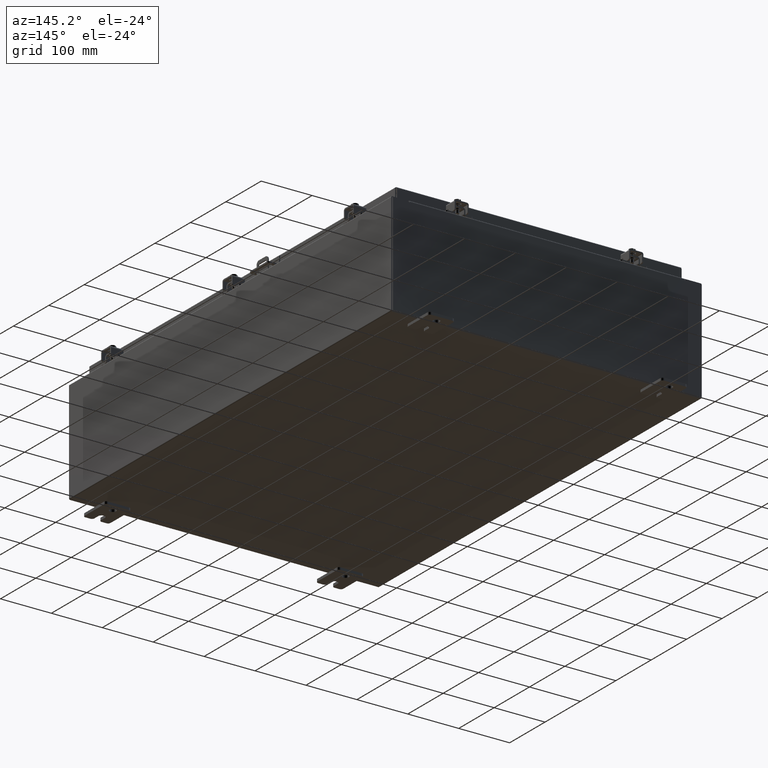
[diagram: clean part render]
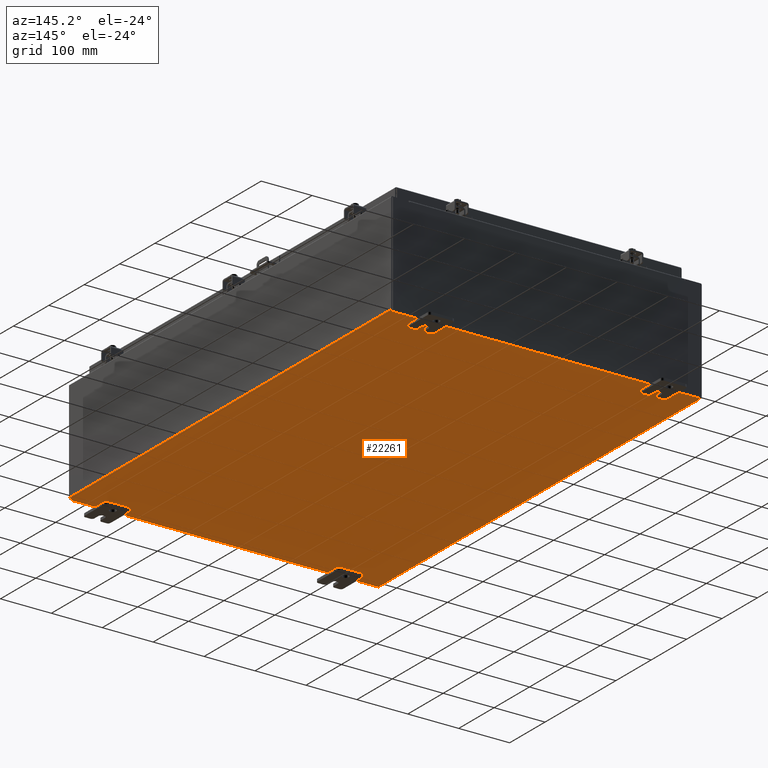
[diagram: same view with one face highlighted and labeled with its STEP entity id]
A machine part, auxiliary view. The second image highlights one B-rep face of the part: STEP entity #22261.
In plain terms, the highlighted planar face has unit normal (0, 0, -1).
Its self-contained STEP definition (entity closure, byte-faithful):
#810 = FACE_OUTER_BOUND ( 'NONE', #28744, .T. ) ;
#1024 = LINE ( 'NONE', #23456, #34575 ) ;
#1536 = CARTESIAN_POINT ( 'NONE',  ( 11.91229999999999100, -17.92530000000000400, -0.07470000000000000300 ) ) ;
#2037 = VERTEX_POINT ( 'NONE', #41147 ) ;
#3290 = EDGE_CURVE ( 'NONE', #34781, #2037, #23371, .T. ) ;
#5564 = DIRECTION ( 'NONE',  ( -1.000000000000000000, -0.0000000000000000000, -0.0000000000000000000 ) ) ;
#8038 = VECTOR ( 'NONE', #24789, 39.37007874015748100 ) ;
#9439 = ORIENTED_EDGE ( 'NONE', *, *, #18617, .T. ) ;
#10167 = VERTEX_POINT ( 'NONE', #15293 ) ;
#13184 = DIRECTION ( 'NONE',  ( -0.0000000000000000000, -1.000000000000000000, -8.208677865577646300E-017 ) ) ;
#13499 = VERTEX_POINT ( 'NONE', #1536 ) ;
#14748 = DIRECTION ( 'NONE',  ( 0.0000000000000000000, 0.0000000000000000000, -1.000000000000000000 ) ) ;
#15293 = CARTESIAN_POINT ( 'NONE',  ( -11.91230000000000000, -17.92530000000000400, -0.07469999999999994700 ) ) ;
#16239 = ORIENTED_EDGE ( 'NONE', *, *, #19826, .F. ) ;
#18218 = EDGE_CURVE ( 'NONE', #34781, #13499, #25351, .T. ) ;
#18617 = EDGE_CURVE ( 'NONE', #10167, #2037, #26302, .T. ) ;
#19826 = EDGE_CURVE ( 'NONE', #10167, #13499, #1024, .T. ) ;
#21085 = CARTESIAN_POINT ( 'NONE',  ( 0.0000000000000000000, 0.0000000000000000000, -0.07470000000000000300 ) ) ;
#22261 = ADVANCED_FACE ( 'NONE', ( #810 ), #27621, .T. ) ;
#22358 = VECTOR ( 'NONE', #5564, 39.37007874015748100 ) ;
#22828 = CARTESIAN_POINT ( 'NONE',  ( 11.91230000000000000, 17.92529999999999600, -0.07469999999999738000 ) ) ;
#23371 = LINE ( 'NONE', #37119, #22358 ) ;
#23456 = CARTESIAN_POINT ( 'NONE',  ( -12.00000000000000200, -17.92530000000000400, -0.07470000000000000300 ) ) ;
#24789 = DIRECTION ( 'NONE',  ( -0.0000000000000000000, 1.000000000000000000, -0.0000000000000000000 ) ) ;
#24941 = CARTESIAN_POINT ( 'NONE',  ( -11.91230000000000000, -17.92530000000000400, -0.07469999999999994700 ) ) ;
#25351 = LINE ( 'NONE', #22828, #38465 ) ;
#25723 = CARTESIAN_POINT ( 'NONE',  ( 11.91230000000000000, 17.92529999999999600, -0.07469999999999738000 ) ) ;
#26302 = LINE ( 'NONE', #24941, #8038 ) ;
#27621 = PLANE ( 'NONE',  #41388 ) ;
#28744 = EDGE_LOOP ( 'NONE', ( #16239, #9439, #32449, #29740 ) ) ;
#29740 = ORIENTED_EDGE ( 'NONE', *, *, #18218, .T. ) ;
#30062 = DIRECTION ( 'NONE',  ( 1.000000000000000000, 0.0000000000000000000, 0.0000000000000000000 ) ) ;
#32449 = ORIENTED_EDGE ( 'NONE', *, *, #3290, .F. ) ;
#34575 = VECTOR ( 'NONE', #30062, 39.37007874015748100 ) ;
#34781 = VERTEX_POINT ( 'NONE', #25723 ) ;
#37119 = CARTESIAN_POINT ( 'NONE',  ( -12.00000000000000200, 17.92529999999999600, -0.07470000000000000300 ) ) ;
#37351 = DIRECTION ( 'NONE',  ( -1.000000000000000000, 0.0000000000000000000, -0.0000000000000000000 ) ) ;
#38465 = VECTOR ( 'NONE', #13184, 39.37007874015748100 ) ;
#41147 = CARTESIAN_POINT ( 'NONE',  ( -11.91230000000000000, 17.92529999999999600, -0.07470000000000000300 ) ) ;
#41388 = AXIS2_PLACEMENT_3D ( 'NONE', #21085, #14748, #37351 ) ;